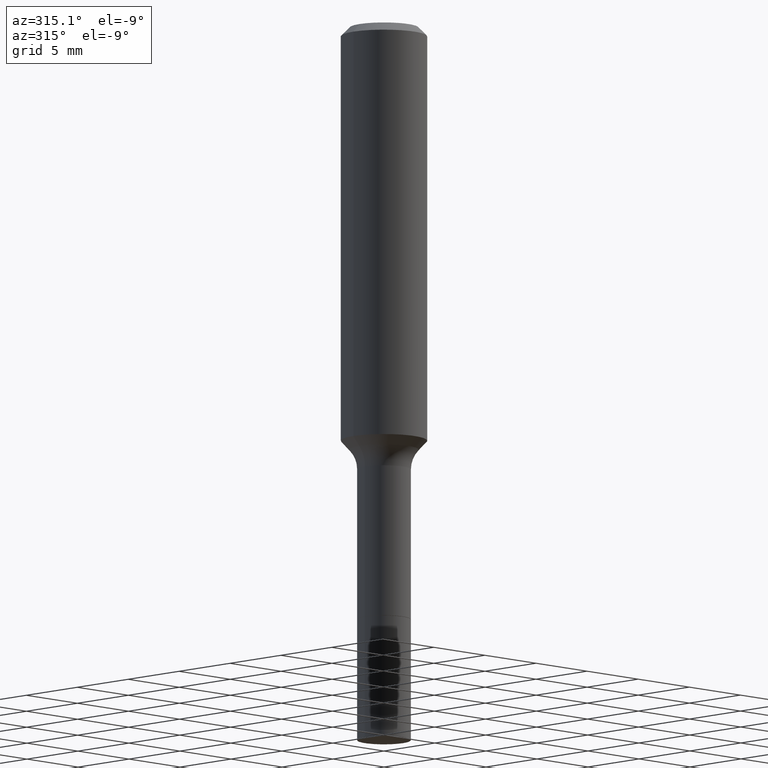
[diagram: clean part render]
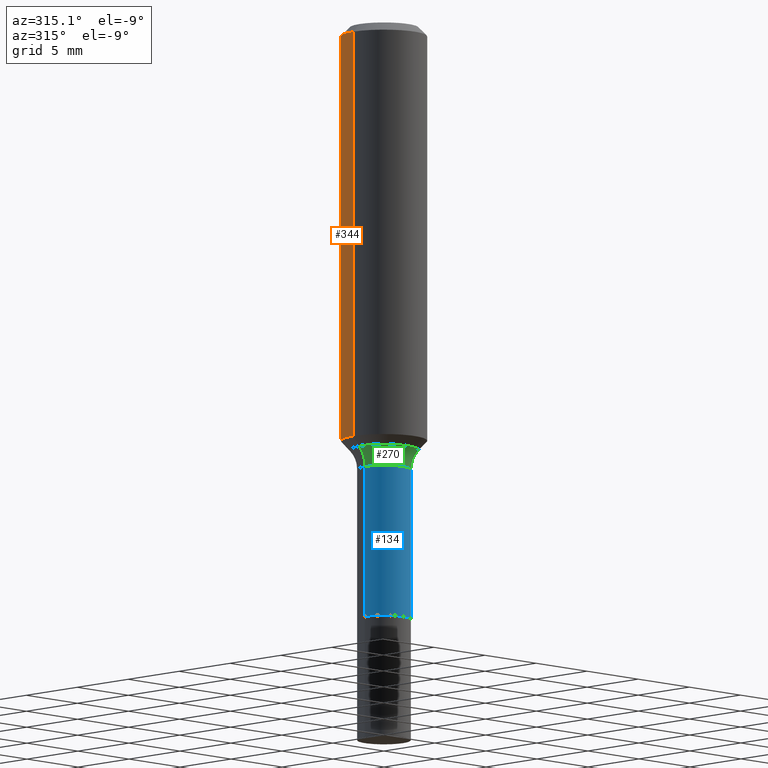
[diagram: same view with three faces highlighted in distinct colors, each labeled with its STEP entity id]
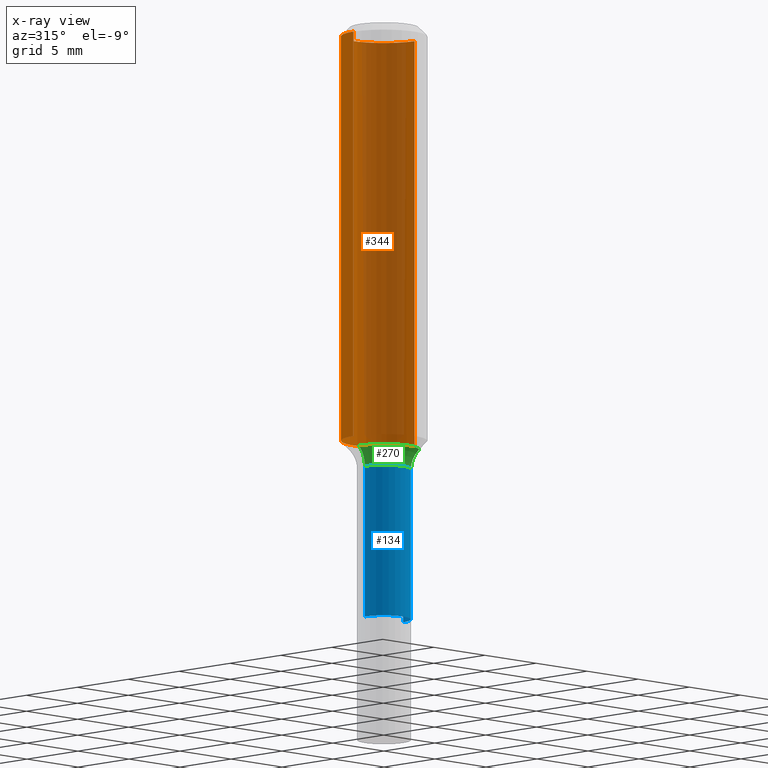
[diagram: x-ray of the same camera — body ghosted, the three highlighted faces saturated]
A machine part, auxiliary view with three faces highlighted in distinct colors.
The next image is the same camera in x-ray (body ghosted, the three faces saturated) — at least one of them is partly hidden behind the body in this view.
Their STEP definitions:

[orange] entity #344 — the highlighted cylindrical surface (partial cylindrical patch) has radius 2.9997 mm, axis along (-0, 0, 1).
#2 = CARTESIAN_POINT ( 'NONE',  ( -0.1181000000000000660, 8.391509709326787887E-16, -5.809262341591047287E-30 ) ) ;
#14 = AXIS2_PLACEMENT_3D ( 'NONE', #479, #281, #243 ) ;
#39 = LINE ( 'NONE', #2, #408 ) ;
#41 = AXIS2_PLACEMENT_3D ( 'NONE', #49, #403, #46 ) ;
#46 = DIRECTION ( 'NONE',  ( 1.000000000000000000, -6.982962677686266711E-15, 4.876176775795936353E-29 ) ) ;
#49 = CARTESIAN_POINT ( 'NONE',  ( 0.000000000000000000, 0.000000000000000000, 0.000000000000000000 ) ) ;
#50 = DIRECTION ( 'NONE',  ( -2.445468806185136597E-29, 3.491481338843145583E-15, 1.000000000000000000 ) ) ;
#68 = ORIENTED_EDGE ( 'NONE', *, *, #183, .T. ) ;
#72 = CARTESIAN_POINT ( 'NONE',  ( 0.1180999999999999966, -9.071566814582237199E-16, -0.02362000000000014435 ) ) ;
#88 = DIRECTION ( 'NONE',  ( 1.000000000000000000, -6.982962677686266711E-15, 0.000000000000000000 ) ) ;
#93 = CYLINDRICAL_SURFACE ( 'NONE', #41, 0.1181000000000000660 ) ;
#117 = LINE ( 'NONE', #513, #436 ) ;
#122 = DIRECTION ( 'NONE',  ( -2.445468806185136877E-29, 3.491481338843145188E-15, 1.000000000000000000 ) ) ;
#127 = CARTESIAN_POINT ( 'NONE',  ( 5.776197320209328408E-31, -8.246878922347560526E-17, -0.02362000000000014435 ) ) ;
#135 = ORIENTED_EDGE ( 'NONE', *, *, #170, .F. ) ;
#138 = VERTEX_POINT ( 'NONE', #72 ) ;
#144 = VERTEX_POINT ( 'NONE', #160 ) ;
#160 = CARTESIAN_POINT ( 'NONE',  ( -0.1181000000000001354, -3.145186189004920235E-15, -1.141159517483703700 ) ) ;
#170 = EDGE_CURVE ( 'NONE', #308, #138, #117, .T. ) ;
#178 = ORIENTED_EDGE ( 'NONE', *, *, #187, .T. ) ;
#183 = EDGE_CURVE ( 'NONE', #308, #144, #468, .T. ) ;
#187 = EDGE_CURVE ( 'NONE', #144, #425, #39, .T. ) ;
#232 = ORIENTED_EDGE ( 'NONE', *, *, #253, .F. ) ;
#243 = DIRECTION ( 'NONE',  ( 1.000000000000000000, -6.982962677686269077E-15, 0.000000000000000000 ) ) ;
#253 = EDGE_CURVE ( 'NONE', #138, #425, #390, .T. ) ;
#281 = DIRECTION ( 'NONE',  ( -2.445468806185136597E-29, 3.491481338843145583E-15, 1.000000000000000000 ) ) ;
#308 = VERTEX_POINT ( 'NONE', #452 ) ;
#330 = FACE_OUTER_BOUND ( 'NONE', #455, .T. ) ;
#344 = ADVANCED_FACE ( 'NONE', ( #330 ), #93, .T. ) ;
#352 = CARTESIAN_POINT ( 'NONE',  ( -0.1180999999999999966, -1.194252003647858156E-15, -0.02362000000000014435 ) ) ;
#367 = DIRECTION ( 'NONE',  ( -2.445468806185136877E-29, 3.491481338843145188E-15, 1.000000000000000000 ) ) ;
#386 = AXIS2_PLACEMENT_3D ( 'NONE', #127, #50, #88 ) ;
#390 = CIRCLE ( 'NONE', #386, 0.1180999999999999966 ) ;
#403 = DIRECTION ( 'NONE',  ( -2.445468806185136597E-29, 3.491481338843145583E-15, 1.000000000000000000 ) ) ;
#408 = VECTOR ( 'NONE', #122, 39.37007874015748143 ) ;
#425 = VERTEX_POINT ( 'NONE', #352 ) ;
#436 = VECTOR ( 'NONE', #367, 39.37007874015748143 ) ;
#452 = CARTESIAN_POINT ( 'NONE',  ( 0.1181000000000001354, -4.809025052172348667E-15, -1.141159517483703700 ) ) ;
#455 = EDGE_LOOP ( 'NONE', ( #68, #178, #232, #135 ) ) ;
#468 = CIRCLE ( 'NONE', #14, 0.1181000000000001354 ) ;
#479 = CARTESIAN_POINT ( 'NONE',  ( 2.790670002887679665E-29, -3.984337159937599615E-15, -1.141159517483703700 ) ) ;
#513 = CARTESIAN_POINT ( 'NONE',  ( 0.1181000000000000660, -8.246878922347485584E-16, 5.758764772215003944E-30 ) ) ;

[blue] entity #134 — the highlighted cylindrical surface (edge-blend (fillet) strip) has radius 1.8669 mm, axis along (-0, 0, 1).
#4 = CARTESIAN_POINT ( 'NONE',  ( -0.07350000000000000977, -4.462713570749628133E-15, -1.635000000000000231 ) ) ;
#18 = EDGE_LOOP ( 'NONE', ( #20, #101, #227, #112 ) ) ;
#20 = ORIENTED_EDGE ( 'NONE', *, *, #410, .F. ) ;
#25 = AXIS2_PLACEMENT_3D ( 'NONE', #285, #474, #240 ) ;
#47 = CARTESIAN_POINT ( 'NONE',  ( 3.998341498112699076E-29, -5.708571989008543862E-15, -1.635000000000000231 ) ) ;
#74 = CIRCLE ( 'NONE', #483, 0.07349999999999994038 ) ;
#101 = ORIENTED_EDGE ( 'NONE', *, *, #354, .T. ) ;
#112 = ORIENTED_EDGE ( 'NONE', *, *, #405, .F. ) ;
#134 = ADVANCED_FACE ( 'NONE', ( #441 ), #477, .T. ) ;
#142 = VERTEX_POINT ( 'NONE', #515 ) ;
#208 = DIRECTION ( 'NONE',  ( -2.445468806185136597E-29, 3.491481338843145583E-15, 1.000000000000000000 ) ) ;
#223 = CARTESIAN_POINT ( 'NONE',  ( 2.984694677948959472E-29, -4.261352974058059028E-15, -1.220499999999999918 ) ) ;
#227 = ORIENTED_EDGE ( 'NONE', *, *, #402, .T. ) ;
#231 = DIRECTION ( 'NONE',  ( -2.445468806185136877E-29, 3.491481338843145188E-15, 1.000000000000000000 ) ) ;
#240 = DIRECTION ( 'NONE',  ( 1.000000000000000000, -6.982962677686266711E-15, 4.876176775795935793E-29 ) ) ;
#265 = VERTEX_POINT ( 'NONE', #374 ) ;
#271 = DIRECTION ( 'NONE',  ( -2.445468806185136877E-29, 3.491481338843145188E-15, 1.000000000000000000 ) ) ;
#285 = CARTESIAN_POINT ( 'NONE',  ( 0.000000000000000000, 0.000000000000000000, 0.000000000000000000 ) ) ;
#300 = VERTEX_POINT ( 'NONE', #4 ) ;
#303 = VERTEX_POINT ( 'NONE', #449 ) ;
#305 = VECTOR ( 'NONE', #231, 39.37007874015748143 ) ;
#332 = DIRECTION ( 'NONE',  ( 1.000000000000000000, -6.982962677686273810E-15, 0.000000000000000000 ) ) ;
#335 = VECTOR ( 'NONE', #271, 39.37007874015748143 ) ;
#350 = CARTESIAN_POINT ( 'NONE',  ( -0.07349999999999996814, 5.222489107836734102E-16, -3.615417291337354245E-30 ) ) ;
#354 = EDGE_CURVE ( 'NONE', #300, #142, #399, .T. ) ;
#374 = CARTESIAN_POINT ( 'NONE',  ( 0.07349999999999994038, -4.774600730867999221E-15, -1.220499999999999918 ) ) ;
#380 = DIRECTION ( 'NONE',  ( 1.000000000000000000, -6.982962677686265133E-15, 0.000000000000000000 ) ) ;
#399 = CIRCLE ( 'NONE', #451, 0.07349999999999999589 ) ;
#402 = EDGE_CURVE ( 'NONE', #142, #265, #428, .T. ) ;
#405 = EDGE_CURVE ( 'NONE', #303, #265, #74, .T. ) ;
#410 = EDGE_CURVE ( 'NONE', #300, #303, #505, .T. ) ;
#428 = LINE ( 'NONE', #461, #305 ) ;
#441 = FACE_OUTER_BOUND ( 'NONE', #18, .T. ) ;
#449 = CARTESIAN_POINT ( 'NONE',  ( -0.07349999999999994038, -4.462713570749628133E-15, -1.220499999999999918 ) ) ;
#451 = AXIS2_PLACEMENT_3D ( 'NONE', #47, #208, #332 ) ;
#461 = CARTESIAN_POINT ( 'NONE',  ( 0.07349999999999996814, -5.132477568099403902E-16, 3.583989930210011434E-30 ) ) ;
#474 = DIRECTION ( 'NONE',  ( -2.445468806185136597E-29, 3.491481338843145583E-15, 1.000000000000000000 ) ) ;
#477 = CYLINDRICAL_SURFACE ( 'NONE', #25, 0.07349999999999996814 ) ;
#483 = AXIS2_PLACEMENT_3D ( 'NONE', #223, #502, #380 ) ;
#502 = DIRECTION ( 'NONE',  ( -2.445468806185136597E-29, 3.491481338843145583E-15, 1.000000000000000000 ) ) ;
#505 = LINE ( 'NONE', #350, #335 ) ;
#515 = CARTESIAN_POINT ( 'NONE',  ( 0.07349999999999999589, -6.221819745818484844E-15, -1.635000000000000231 ) ) ;

[green] entity #270 — the highlighted toroidal blend (fillet) surface has major radius 3.8989 mm and minor (blend) radius 2.032 mm.
#30 = ORIENTED_EDGE ( 'NONE', *, *, #429, .F. ) ;
#32 = CIRCLE ( 'NONE', #509, 0.08000000000000000167 ) ;
#59 = VERTEX_POINT ( 'NONE', #75 ) ;
#69 = EDGE_CURVE ( 'NONE', #145, #303, #32, .T. ) ;
#74 = CIRCLE ( 'NONE', #483, 0.07349999999999994038 ) ;
#75 = CARTESIAN_POINT ( 'NONE',  ( 0.09499170387046632080, -4.734181733092964683E-15, -1.165940131195000173 ) ) ;
#90 = FACE_OUTER_BOUND ( 'NONE', #219, .T. ) ;
#108 = CIRCLE ( 'NONE', #204, 0.09499170387046637631 ) ;
#115 = EDGE_CURVE ( 'NONE', #59, #265, #184, .T. ) ;
#121 = DIRECTION ( 'NONE',  ( -6.982962677686266711E-15, -1.000000000000000000, 3.491481338843145583E-15 ) ) ;
#123 = AXIS2_PLACEMENT_3D ( 'NONE', #174, #446, #294 ) ;
#145 = VERTEX_POINT ( 'NONE', #356 ) ;
#156 = DIRECTION ( 'NONE',  ( -1.000000000000000000, 7.105427357601005014E-15, 0.000000000000000000 ) ) ;
#174 = CARTESIAN_POINT ( 'NONE',  ( 2.984694677948959472E-29, -4.261352974058059028E-15, -1.220499999999999918 ) ) ;
#184 = CIRCLE ( 'NONE', #295, 0.08000000000000000167 ) ;
#204 = AXIS2_PLACEMENT_3D ( 'NONE', #507, #260, #415 ) ;
#207 = DIRECTION ( 'NONE',  ( 1.000000000000000000, -6.982962677686259611E-15, 0.000000000000000000 ) ) ;
#219 = EDGE_LOOP ( 'NONE', ( #30, #504, #465, #501 ) ) ;
#223 = CARTESIAN_POINT ( 'NONE',  ( 2.984694677948959472E-29, -4.261352974058059028E-15, -1.220499999999999918 ) ) ;
#260 = DIRECTION ( 'NONE',  ( -2.445468806185136597E-29, 3.491481338843145583E-15, 1.000000000000000000 ) ) ;
#265 = VERTEX_POINT ( 'NONE', #374 ) ;
#270 = ADVANCED_FACE ( 'NONE', ( #90 ), #426, .F. ) ;
#294 = DIRECTION ( 'NONE',  ( 1.000000000000000000, -6.982962677686265922E-15, 4.883557194083112340E-29 ) ) ;
#295 = AXIS2_PLACEMENT_3D ( 'NONE', #393, #121, #207 ) ;
#303 = VERTEX_POINT ( 'NONE', #449 ) ;
#324 = CARTESIAN_POINT ( 'NONE',  ( -0.1534999999999999420, -3.170669874666305851E-15, -1.220499999999999918 ) ) ;
#356 = CARTESIAN_POINT ( 'NONE',  ( -0.09499170387046632080, -3.395901558849327583E-15, -1.165940131195000173 ) ) ;
#374 = CARTESIAN_POINT ( 'NONE',  ( 0.07349999999999994038, -4.774600730867999221E-15, -1.220499999999999918 ) ) ;
#380 = DIRECTION ( 'NONE',  ( 1.000000000000000000, -6.982962677686265133E-15, 0.000000000000000000 ) ) ;
#393 = CARTESIAN_POINT ( 'NONE',  ( 0.1534999999999999420, -5.333237745082900873E-15, -1.220499999999999918 ) ) ;
#405 = EDGE_CURVE ( 'NONE', #303, #265, #74, .T. ) ;
#415 = DIRECTION ( 'NONE',  ( 1.000000000000000000, -6.982962677686262766E-15, 0.000000000000000000 ) ) ;
#426 = TOROIDAL_SURFACE ( 'NONE', #123, 0.1534999999999999420, 0.08000000000000000167 ) ;
#429 = EDGE_CURVE ( 'NONE', #145, #59, #108, .T. ) ;
#435 = DIRECTION ( 'NONE',  ( 7.105427357601001859E-15, 1.000000000000000000, -3.491481338843145583E-15 ) ) ;
#446 = DIRECTION ( 'NONE',  ( -2.445468806185136597E-29, 3.491481338843145583E-15, 1.000000000000000000 ) ) ;
#449 = CARTESIAN_POINT ( 'NONE',  ( -0.07349999999999994038, -4.462713570749628133E-15, -1.220499999999999918 ) ) ;
#465 = ORIENTED_EDGE ( 'NONE', *, *, #405, .T. ) ;
#483 = AXIS2_PLACEMENT_3D ( 'NONE', #223, #502, #380 ) ;
#501 = ORIENTED_EDGE ( 'NONE', *, *, #115, .F. ) ;
#502 = DIRECTION ( 'NONE',  ( -2.445468806185136597E-29, 3.491481338843145583E-15, 1.000000000000000000 ) ) ;
#504 = ORIENTED_EDGE ( 'NONE', *, *, #69, .T. ) ;
#507 = CARTESIAN_POINT ( 'NONE',  ( 2.851270220716778580E-29, -4.070858210275671756E-15, -1.165940131195000173 ) ) ;
#509 = AXIS2_PLACEMENT_3D ( 'NONE', #324, #435, #156 ) ;